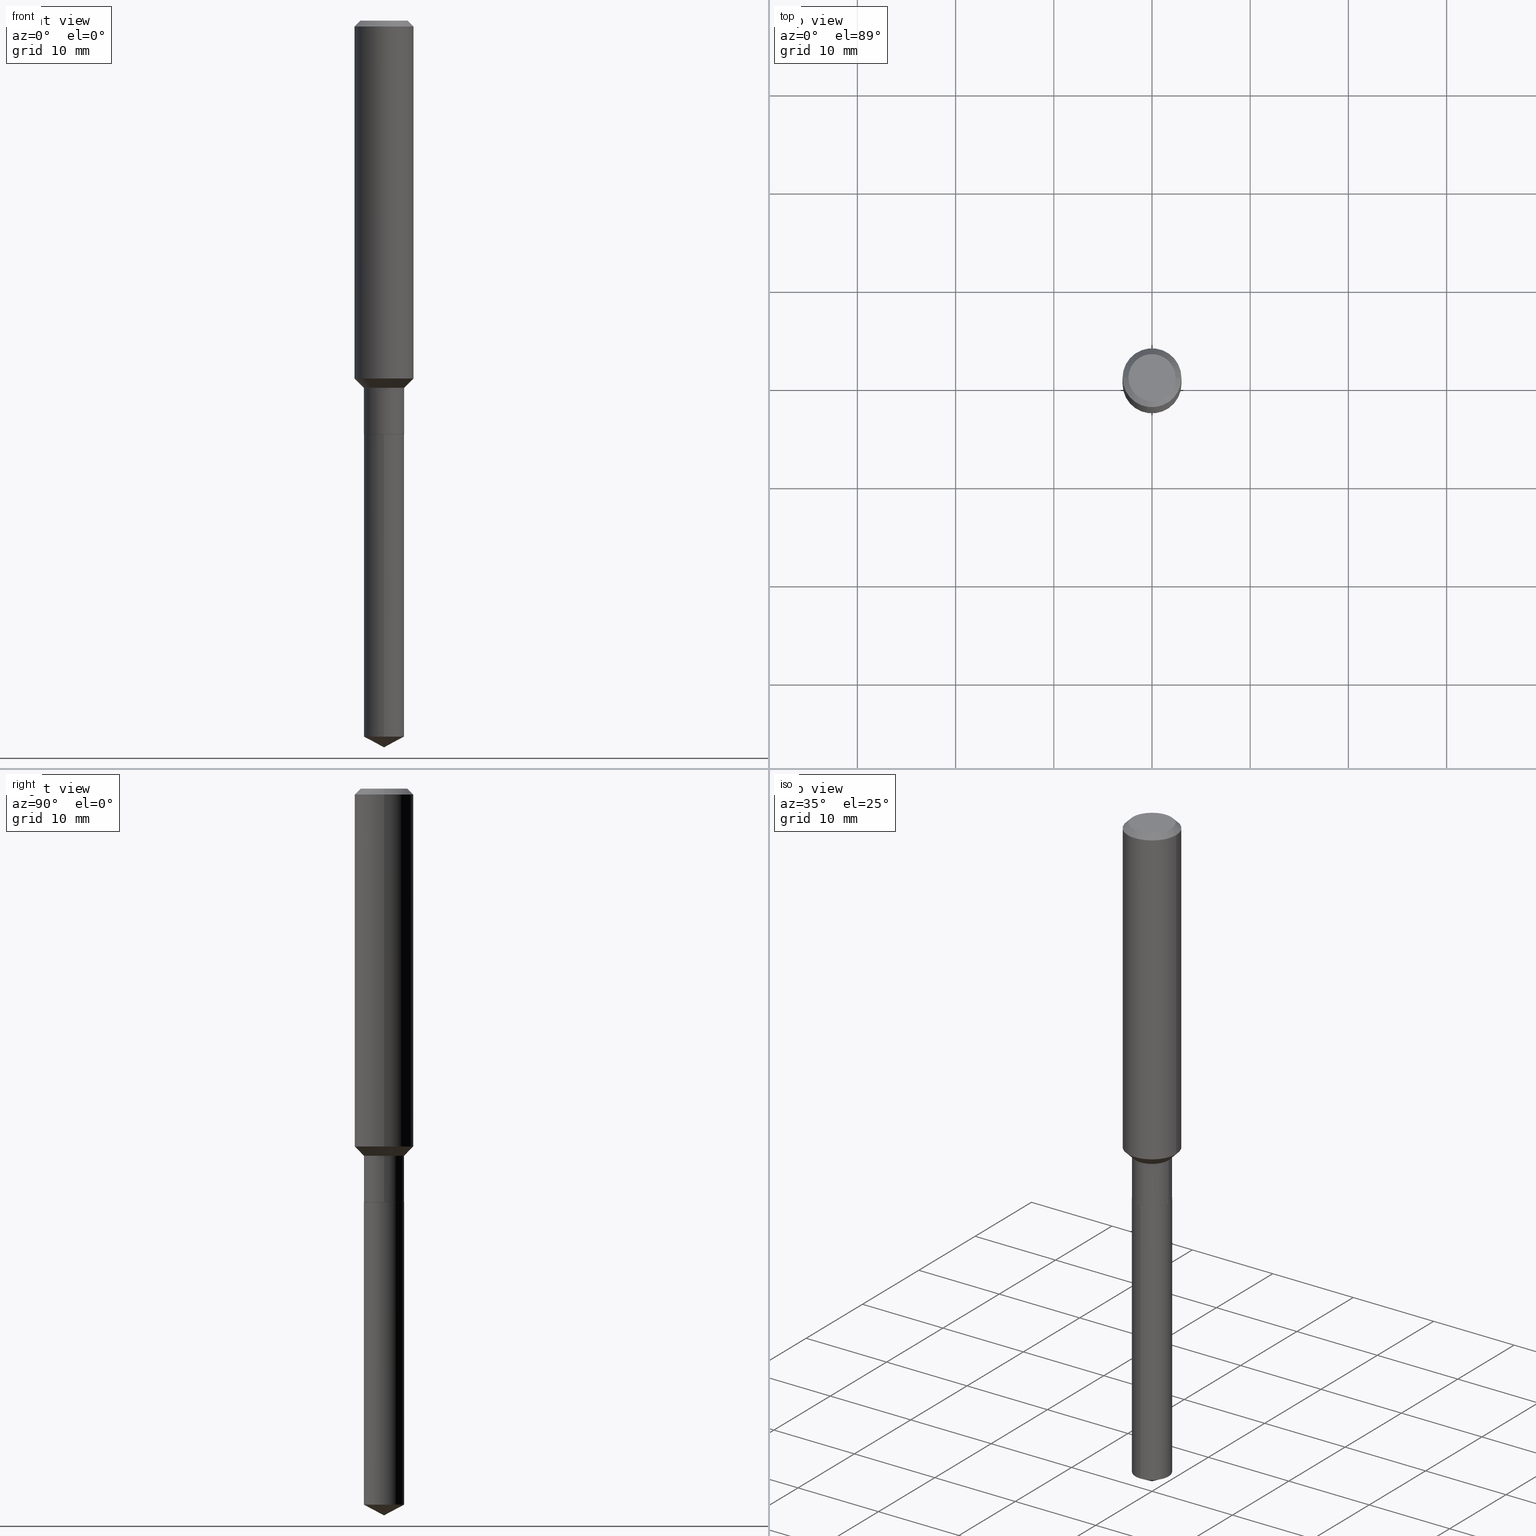
[diagram: canonical four-view strip — front | top / right | iso, engineering-drawing reading convention]
A machine part, canonical four-view strip (front | top / right | iso — engineering-drawing reading convention). The complete STEP part file that produces these views, byte-faithful:
ISO-10303-21;
HEADER;
FILE_DESCRIPTION (( 'STEP AP203' ),
    '1' );
FILE_NAME ('65171.STEP',
    '2024-04-24T20:54:24',
    ( '' ),
    ( '' ),
    'SwSTEP 2.0',
    'SolidWorks 2023',
    '' );
FILE_SCHEMA (( 'CONFIG_CONTROL_DESIGN' ));
ENDSEC;

DATA;
#1 = CARTESIAN_POINT ( 'NONE',  ( 4.053364546251863371E-29, -5.787130319132513889E-15, -1.657499999999999973 ) ) ;
#2 = ORIENTED_EDGE ( 'NONE', *, *, #172, .F. ) ;
#3 = EDGE_LOOP ( 'NONE', ( #271, #218, #302, #380 ) ) ;
#4 = CYLINDRICAL_SURFACE ( 'NONE', #141, 0.1181000000000000799 ) ;
#5 = CONICAL_SURFACE ( 'NONE', #412, 0.08019999999999999352, 0.7853981633975507526 ) ;
#6 = AXIS2_PLACEMENT_3D ( 'NONE', #357, #463, #304 ) ;
#7 = LINE ( 'NONE', #381, #209 ) ;
#8 = LINE ( 'NONE', #480, #311 ) ;
#9 = MANIFOLD_SOLID_BREP ( 'Body-Move/Copy2[1]', #153 ) ;
#10 = ADVANCED_FACE ( 'NONE', ( #88 ), #394, .T. ) ;
#11 = CIRCLE ( 'NONE', #68, 0.08069999999999999396 ) ;
#12 = PLANE ( 'NONE',  #167 ) ;
#13 = EDGE_CURVE ( 'NONE', #471, #129, #404, .T. ) ;
#14 = AXIS2_PLACEMENT_3D ( 'NONE', #97, #256, #376 ) ;
#15 = EDGE_LOOP ( 'NONE', ( #255, #47 ) ) ;
#16 = PLANE ( 'NONE',  #405 ) ;
#17 = DIRECTION ( 'NONE',  ( 2.445468806185136597E-29, -3.491481338843145583E-15, -1.000000000000000000 ) ) ;
#18 = DIRECTION ( 'NONE',  ( -2.445468806185136597E-29, 3.491481338843145583E-15, 1.000000000000000000 ) ) ;
#19 = DATE_AND_TIME ( #64, #248 ) ;
#20 = CARTESIAN_POINT ( 'NONE',  ( 7.124785533225864801E-29, -1.017185731024037782E-14, -2.913400000000000212 ) ) ;
#21 = CC_DESIGN_PERSON_AND_ORGANIZATION_ASSIGNMENT ( #59, #478, ( #69 ) ) ;
#22 = CARTESIAN_POINT ( 'NONE',  ( 5.734079877584412362E-16, 0.08069999999999420692, -1.657500000000000195 ) ) ;
#23 = ORIENTED_EDGE ( 'NONE', *, *, #205, .F. ) ;
#24 = AXIS2_PLACEMENT_3D ( 'NONE', #72, #489, #78 ) ;
#25 = VECTOR ( 'NONE', #453, 39.37007874015748143 ) ;
#26 = APPROVAL_PERSON_ORGANIZATION ( #466, #131, #373 ) ;
#27 = ORIENTED_EDGE ( 'NONE', *, *, #353, .F. ) ;
#28 = DIRECTION ( 'NONE',  ( 0.7071067811865493491, -2.468850131082277177E-15, 0.7071067811865454633 ) ) ;
#29 = CARTESIAN_POINT ( 'NONE',  ( 5.776197320209328408E-31, -8.246878922347560526E-17, -0.02362000000000014435 ) ) ;
#30 = PERSON_AND_ORGANIZATION_ROLE ( 'design_owner' ) ;
#31 = DIRECTION ( 'NONE',  ( 1.000000000000000000, -6.982962677686261977E-15, 0.000000000000000000 ) ) ;
#32 = CARTESIAN_POINT ( 'NONE',  ( 0.08069999999999999396, -6.348909666552373459E-15, -1.657000000000000028 ) ) ;
#33 = AXIS2_PLACEMENT_3D ( 'NONE', #347, #315, #410 ) ;
#34 = CYLINDRICAL_SURFACE ( 'NONE', #49, 0.08069999999999999396 ) ;
#35 = ORIENTED_EDGE ( 'NONE', *, *, #360, .T. ) ;
#36 = CARTESIAN_POINT ( 'NONE',  ( -5.635250880892411374E-16, -0.08070000000000578100, -1.657499999999999751 ) ) ;
#37 = ORIENTED_EDGE ( 'NONE', *, *, #379, .T. ) ;
#38 = ORIENTED_EDGE ( 'NONE', *, *, #156, .T. ) ;
#39 = ADVANCED_FACE ( 'NONE', ( #364 ), #224, .T. ) ;
#40 = DIRECTION ( 'NONE',  ( -2.445468806185136877E-29, 3.491481338843145188E-15, 1.000000000000000000 ) ) ;
#41 = VERTEX_POINT ( 'NONE', #391 ) ;
#42 = ORIENTED_EDGE ( 'NONE', *, *, #387, .F. ) ;
#43 = LENGTH_MEASURE_WITH_UNIT ( LENGTH_MEASURE( 0.02539999999999999897 ), #198 );
#44 = CONICAL_SURFACE ( 'NONE', #56, 0.1180999999999999966, 0.7853981633974459475 ) ;
#45 = VECTOR ( 'NONE', #189, 39.37007874015748143 ) ;
#46 = ADVANCED_FACE ( 'NONE', ( #328 ), #44, .T. ) ;
#47 = ORIENTED_EDGE ( 'NONE', *, *, #168, .T. ) ;
#48 = VERTEX_POINT ( 'NONE', #20 ) ;
#49 = AXIS2_PLACEMENT_3D ( 'NONE', #195, #267, #483 ) ;
#50 = FACE_OUTER_BOUND ( 'NONE', #169, .T. ) ;
#51 = VECTOR ( 'NONE', #81, 39.37007874015748143 ) ;
#52 = EDGE_CURVE ( 'NONE', #237, #140, #485, .T. ) ;
#53 = CARTESIAN_POINT ( 'NONE',  ( 4.053364546251863371E-29, -5.787130319132513889E-15, -1.657499999999999973 ) ) ;
#54 = PERSON_AND_ORGANIZATION ( #279, #426 ) ;
#55 = DIRECTION ( 'NONE',  ( 2.438088387897960049E-29, -3.491481338843145188E-15, -1.000000000000000000 ) ) ;
#56 = AXIS2_PLACEMENT_3D ( 'NONE', #134, #17, #361 ) ;
#57 = AXIS2_PLACEMENT_3D ( 'NONE', #262, #401, #307 ) ;
#58 = CYLINDRICAL_SURFACE ( 'NONE', #283, 0.08069999999999998008 ) ;
#59 = PERSON_AND_ORGANIZATION ( #279, #426 ) ;
#60 = LINE ( 'NONE', #22, #273 ) ;
#61 = ADVANCED_FACE ( 'NONE', ( #436 ), #5, .T. ) ;
#62 = DATE_TIME_ROLE ( 'classification_date' ) ;
#63 = ORIENTED_EDGE ( 'NONE', *, *, #475, .T. ) ;
#64 = CALENDAR_DATE ( 2024, 24, 4 ) ;
#65 = LINE ( 'NONE', #342, #450 ) ;
#66 = VERTEX_POINT ( 'NONE', #231 ) ;
#67 = CALENDAR_DATE ( 2024, 24, 4 ) ;
#68 = AXIS2_PLACEMENT_3D ( 'NONE', #1, #71, #157 ) ;
#69 = PRODUCT_DEFINITION ( 'UNKNOWN', '', #245, #86 ) ;
#70 = FACE_OUTER_BOUND ( 'NONE', #348, .T. ) ;
#71 = DIRECTION ( 'NONE',  ( -2.445522596700028966E-29, 3.491404307764253718E-15, 1.000000000000000000 ) ) ;
#72 = CARTESIAN_POINT ( 'NONE',  ( 4.053364546251863371E-29, -5.787130319132513889E-15, -1.657499999999999973 ) ) ;
#73 = AXIS2_PLACEMENT_3D ( 'NONE', #286, #287, #246 ) ;
#74 = CARTESIAN_POINT ( 'NONE',  ( 5.734079877584711143E-16, 0.08069999999998998808, -2.870491048864919570 ) ) ;
#75 = EDGE_CURVE ( 'NONE', #247, #235, #191, .T. ) ;
#76 = ORIENTED_EDGE ( 'NONE', *, *, #82, .T. ) ;
#77 = CARTESIAN_POINT ( 'NONE',  ( -0.08019999999999999352, -5.214625817878801991E-15, -1.657499999999999973 ) ) ;
#78 = DIRECTION ( 'NONE',  ( 1.000000000000000000, -6.982962677686265922E-15, 0.000000000000000000 ) ) ;
#79 = ORIENTED_EDGE ( 'NONE', *, *, #409, .T. ) ;
#80 = CARTESIAN_POINT ( 'NONE',  ( -0.09447999999999998066, 7.009847083995354710E-16, -1.928573779297727792E-17 ) ) ;
#81 = DIRECTION ( 'NONE',  ( 0.7071067811866199593, -2.468850131083015945E-15, 0.7071067811864750752 ) ) ;
#82 = EDGE_CURVE ( 'NONE', #48, #90, #270, .T. ) ;
#83 = CONICAL_SURFACE ( 'NONE', #254, 74.04434902938358221, 1.082104136236486713 ) ;
#84 = CC_DESIGN_SECURITY_CLASSIFICATION ( #346, ( #245 ) ) ;
#85 = ORIENTED_EDGE ( 'NONE', *, *, #475, .F. ) ;
#86 = DESIGN_CONTEXT ( 'detailed design', #130, 'design' ) ;
#87 = DIRECTION ( 'NONE',  ( -6.982962677686266711E-15, -1.000000000000000000, 3.385189583227092077E-15 ) ) ;
#88 = FACE_OUTER_BOUND ( 'NONE', #257, .T. ) ;
#89 = PLANE ( 'NONE',  #206 ) ;
#90 = VERTEX_POINT ( 'NONE', #74 ) ;
#91 = DIRECTION ( 'NONE',  ( -6.982962677686266711E-15, -1.000000000000000000, 3.541896320645558897E-15 ) ) ;
#92 = PERSON_AND_ORGANIZATION ( #279, #426 ) ;
#93 = CONICAL_SURFACE ( 'NONE', #24, 0.08019999999999999352, 0.7853981633975507526 ) ;
#94 = CIRCLE ( 'NONE', #316, 0.08069999999999998008 ) ;
#95 = DIRECTION ( 'NONE',  ( -2.445468806185136597E-29, 3.491481338843145583E-15, 1.000000000000000000 ) ) ;
#96 = CC_DESIGN_APPROVAL ( #236, ( #69 ) ) ;
#97 = CARTESIAN_POINT ( 'NONE',  ( 4.052141811848771691E-29, -5.785384578463092385E-15, -1.657000000000000028 ) ) ;
#98 = COORDINATED_UNIVERSAL_TIME_OFFSET ( 5, 0, .BEHIND. ) ;
#99 = ORIENTED_EDGE ( 'NONE', *, *, #52, .F. ) ;
#100 = CARTESIAN_POINT ( 'NONE',  ( 4.053364546251863371E-29, -5.787130319132513889E-15, -1.657499999999999973 ) ) ;
#101 = APPROVAL_DATE_TIME ( #470, #236 ) ;
#102 = DIRECTION ( 'NONE',  ( -2.445468806185136877E-29, 3.491481338843145188E-15, 1.000000000000000000 ) ) ;
#103 = FACE_OUTER_BOUND ( 'NONE', #173, .T. ) ;
#104 = EDGE_LOOP ( 'NONE', ( #272, #461, #99, #144 ) ) ;
#105 = EDGE_CURVE ( 'NONE', #165, #160, #454, .T. ) ;
#106 = DIRECTION ( 'NONE',  ( -2.445468806185136597E-29, 3.491481338843145583E-15, 1.000000000000000000 ) ) ;
#107 = DIRECTION ( 'NONE',  ( -2.445468806185136597E-29, 3.491481338843145583E-15, 1.000000000000000000 ) ) ;
#108 = AXIS2_PLACEMENT_3D ( 'NONE', #227, #452, #383 ) ;
#109 = CONICAL_SURFACE ( 'NONE', #57, 0.08069999999999998008, 0.7853981633974510546 ) ;
#110 = CC_DESIGN_APPROVAL ( #309, ( #346 ) ) ;
#111 = DIRECTION ( 'NONE',  ( -6.982962677686266711E-15, -1.000000000000000000, 6.770379166454184154E-15 ) ) ;
#112 = ADVANCED_FACE ( 'NONE', ( #114 ), #93, .T. ) ;
#113 = CARTESIAN_POINT ( 'NONE',  ( -0.1181000000000000799, 8.391509709326788873E-16, -5.809262341591047988E-30 ) ) ;
#114 = FACE_OUTER_BOUND ( 'NONE', #3, .T. ) ;
#115 = ORIENTED_EDGE ( 'NONE', *, *, #249, .T. ) ;
#116 = EDGE_LOOP ( 'NONE', ( #182, #299 ) ) ;
#117 = ORIENTED_EDGE ( 'NONE', *, *, #82, .F. ) ;
#118 = CC_DESIGN_PERSON_AND_ORGANIZATION_ASSIGNMENT ( #92, #30, ( #229 ) ) ;
#119 = LINE ( 'NONE', #349, #45 ) ;
#120 = CIRCLE ( 'NONE', #388, 0.1181000000000001632 ) ;
#121 = CARTESIAN_POINT ( 'NONE',  ( -0.08069999999999998008, -4.888839992794759829E-15, -1.471900000000000208 ) ) ;
#122 = ORIENTED_EDGE ( 'NONE', *, *, #168, .F. ) ;
#123 = CARTESIAN_POINT ( 'NONE',  ( 3.599485535823903241E-29, -5.139111382643227310E-15, -1.471900000000000208 ) ) ;
#124 = LINE ( 'NONE', #280, #25 ) ;
#125 = PRODUCT_RELATED_PRODUCT_CATEGORY ( 'detail', '', ( #229 ) ) ;
#126 = CARTESIAN_POINT ( 'NONE',  ( -5.635250880892114565E-16, -0.08070000000001002760, -2.870491048864918682 ) ) ;
#127 = DIMENSIONAL_EXPONENTS ( 1.000000000000000000, 0.000000000000000000, 0.000000000000000000, 0.000000000000000000, 0.000000000000000000, 0.000000000000000000, 0.000000000000000000 ) ;
#128 = AXIS2_PLACEMENT_3D ( 'NONE', #179, #473, #300 ) ;
#129 = VERTEX_POINT ( 'NONE', #155 ) ;
#130 = APPLICATION_CONTEXT ( 'configuration controlled 3d designs of mechanical parts and assemblies' ) ;
#131 = APPROVAL ( #212, 'UNSPECIFIED' ) ;
#132 = CONICAL_SURFACE ( 'NONE', #6, 74.04434902938358221, 1.082104136236486713 ) ;
#133 = LOCAL_TIME ( 16, 54, 24.00000000000000000, #143 ) ;
#134 = CARTESIAN_POINT ( 'NONE',  ( 5.776197320209328408E-31, -8.246878922347560526E-17, -0.02362000000000014435 ) ) ;
#135 = CARTESIAN_POINT ( 'NONE',  ( 4.053364546251863371E-29, -5.787130319132513889E-15, -1.657499999999999973 ) ) ;
#136 = EDGE_CURVE ( 'NONE', #350, #201, #431, .T. ) ;
#137 = DIRECTION ( 'NONE',  ( 6.982962677686265922E-15, 1.000000000000000000, -3.491404307764253324E-15 ) ) ;
#138 = CARTESIAN_POINT ( 'NONE',  ( 0.1180999999999999966, -9.071566814582237199E-16, -0.02362000000000014435 ) ) ;
#139 = DIRECTION ( 'NONE',  ( 1.000000000000000000, 0.000000000000000000, 0.000000000000000000 ) ) ;
#140 = VERTEX_POINT ( 'NONE', #121 ) ;
#141 = AXIS2_PLACEMENT_3D ( 'NONE', #339, #310, #374 ) ;
#142 = ORIENTED_EDGE ( 'NONE', *, *, #136, .F. ) ;
#143 = COORDINATED_UNIVERSAL_TIME_OFFSET ( 5, 0, .BEHIND. ) ;
#144 = ORIENTED_EDGE ( 'NONE', *, *, #446, .F. ) ;
#145 = CC_DESIGN_PERSON_AND_ORGANIZATION_ASSIGNMENT ( #54, #208, ( #346 ) ) ;
#146 = CYLINDRICAL_SURFACE ( 'NONE', #359, 0.1181000000000000799 ) ;
#147 = APPROVAL_DATE_TIME ( #367, #309 ) ;
#148 = ORIENTED_EDGE ( 'NONE', *, *, #52, .T. ) ;
#149 = DIRECTION ( 'NONE',  ( -0.7071067811865493491, 7.493145998870358893E-15, 0.7071067811865454633 ) ) ;
#150 = SECURITY_CLASSIFICATION_LEVEL ( 'unclassified' ) ;
#151 = DIRECTION ( 'NONE',  ( -2.445468806185136597E-29, 3.491481338843145583E-15, 1.000000000000000000 ) ) ;
#152 = DIRECTION ( 'NONE',  ( 6.273719981627766076E-15, 0.8829475928589297640, 0.4694715627858855878 ) ) ;
#153 = CLOSED_SHELL ( 'NONE', ( #163, #258, #289, #341, #285 ) ) ;
#154 = VECTOR ( 'NONE', #442, 39.37007874015748143 ) ;
#155 = CARTESIAN_POINT ( 'NONE',  ( 0.08019999999999999352, -6.347163925882951955E-15, -1.657499999999999973 ) ) ;
#156 = EDGE_CURVE ( 'NONE', #411, #399, #232, .T. ) ;
#157 = DIRECTION ( 'NONE',  ( -6.982962677686266711E-15, -1.000000000000000000, 3.385189583227092077E-15 ) ) ;
#158 = ORIENTED_EDGE ( 'NONE', *, *, #230, .T. ) ;
#159 = CARTESIAN_POINT ( 'NONE',  ( -0.08019999999999999352, -5.217275045052913192E-15, -1.657499999999999973 ) ) ;
#160 = VERTEX_POINT ( 'NONE', #32 ) ;
#161 = LINE ( 'NONE', #482, #51 ) ;
#162 = LOCAL_TIME ( 16, 54, 24.00000000000000000, #183 ) ;
#163 = ADVANCED_FACE ( 'NONE', ( #378 ), #34, .T. ) ;
#164 = LINE ( 'NONE', #351, #486 ) ;
#165 = VERTEX_POINT ( 'NONE', #445 ) ;
#166 = CARTESIAN_POINT ( 'NONE',  ( 3.508025002472578731E-29, -5.008529980570492532E-15, -1.434500000000000330 ) ) ;
#167 = AXIS2_PLACEMENT_3D ( 'NONE', #420, #55, #210 ) ;
#168 = EDGE_CURVE ( 'NONE', #41, #399, #11, .T. ) ;
#169 = EDGE_LOOP ( 'NONE', ( #240, #217 ) ) ;
#170 = DIRECTION ( 'NONE',  ( 1.000000000000000000, -6.982962677686265922E-15, 0.000000000000000000 ) ) ;
#171 = PRODUCT_DEFINITION_SHAPE ( 'NONE', 'NONE',  #69 ) ;
#172 = EDGE_CURVE ( 'NONE', #201, #66, #416, .T. ) ;
#173 = EDGE_LOOP ( 'NONE', ( #148, #63, #142, #42 ) ) ;
#174 = CARTESIAN_POINT ( 'NONE',  ( 4.053364546251863371E-29, -5.787130319132513889E-15, -1.657499999999999973 ) ) ;
#175 = DATE_AND_TIME ( #187, #355 ) ;
#176 = CYLINDRICAL_SURFACE ( 'NONE', #434, 0.08069999999999999396 ) ;
#177 = DIRECTION ( 'NONE',  ( -2.445468806185136597E-29, 3.491481338843145583E-15, 1.000000000000000000 ) ) ;
#178 = CARTESIAN_POINT ( 'NONE',  ( 0.1181000000000001632, -5.833217872805242372E-15, -1.434500000000000330 ) ) ;
#179 = CARTESIAN_POINT ( 'NONE',  ( 3.599485535823903241E-29, -5.139111382643227310E-15, -1.471900000000000208 ) ) ;
#180 = APPROVAL_STATUS ( 'not_yet_approved' ) ;
#181 = FACE_OUTER_BOUND ( 'NONE', #274, .T. ) ;
#182 = ORIENTED_EDGE ( 'NONE', *, *, #451, .F. ) ;
#183 = COORDINATED_UNIVERSAL_TIME_OFFSET ( 5, 0, .BEHIND. ) ;
#184 = ORIENTED_EDGE ( 'NONE', *, *, #192, .F. ) ;
#185 = DIRECTION ( 'NONE',  ( 1.000000000000000000, -6.982962677686267499E-15, 4.875432709231658792E-29 ) ) ;
#186 = CARTESIAN_POINT ( 'NONE',  ( -0.1181000000000001632, -4.169379009637814335E-15, -1.434500000000000330 ) ) ;
#187 = CALENDAR_DATE ( 2024, 24, 4 ) ;
#188 = CARTESIAN_POINT ( 'NONE',  ( 5.776197320209328408E-31, -8.246878922347560526E-17, -0.02362000000000014435 ) ) ;
#189 = DIRECTION ( 'NONE',  ( -2.445468806185136877E-29, 3.491481338843145188E-15, 1.000000000000000000 ) ) ;
#190 = DIRECTION ( 'NONE',  ( 1.000000000000000000, -6.982962677686267499E-15, 4.875432709231658792E-29 ) ) ;
#191 = CIRCLE ( 'NONE', #449, 0.09447999999999998066 ) ;
#192 = EDGE_CURVE ( 'NONE', #165, #140, #119, .T. ) ;
#193 =( GEOMETRIC_REPRESENTATION_CONTEXT ( 3 ) GLOBAL_UNCERTAINTY_ASSIGNED_CONTEXT ( ( #288 ) ) GLOBAL_UNIT_ASSIGNED_CONTEXT ( ( #202, #284, #354 ) ) REPRESENTATION_CONTEXT ( 'NONE', 'WORKASPACE' ) );
#194 = CC_DESIGN_APPROVAL ( #131, ( #245 ) ) ;
#195 = CARTESIAN_POINT ( 'NONE',  ( 4.053364546251863371E-29, -5.787130319132513889E-15, -1.657499999999999973 ) ) ;
#196 = ORIENTED_EDGE ( 'NONE', *, *, #105, .F. ) ;
#197 = ORIENTED_EDGE ( 'NONE', *, *, #390, .T. ) ;
#198 =( LENGTH_UNIT ( ) NAMED_UNIT ( * ) SI_UNIT ( $, .METRE. ) );
#199 = EDGE_CURVE ( 'NONE', #66, #313, #423, .T. ) ;
#200 = DIRECTION ( 'NONE',  ( -0.7071067811865459074, 2.468850131082239706E-15, -0.7071067811865492381 ) ) ;
#201 = VERTEX_POINT ( 'NONE', #186 ) ;
#202 =( CONVERSION_BASED_UNIT ( 'INCH', #43 ) LENGTH_UNIT ( ) NAMED_UNIT ( #127 ) );
#203 = AXIS2_PLACEMENT_3D ( 'NONE', #188, #444, #477 ) ;
#204 = ORIENTED_EDGE ( 'NONE', *, *, #136, .T. ) ;
#205 = EDGE_CURVE ( 'NONE', #471, #165, #228, .T. ) ;
#206 = AXIS2_PLACEMENT_3D ( 'NONE', #53, #301, #214 ) ;
#207 = CC_DESIGN_DATE_AND_TIME_ASSIGNMENT ( #175, #295, ( #69 ) ) ;
#208 = PERSON_AND_ORGANIZATION_ROLE ( 'classification_officer' ) ;
#209 = VECTOR ( 'NONE', #40, 39.37007874015748143 ) ;
#210 = DIRECTION ( 'NONE',  ( -1.000000000000000000, 6.982962677686265922E-15, -4.876176775795935793E-29 ) ) ;
#211 = EDGE_LOOP ( 'NONE', ( #456, #76, #352 ) ) ;
#212 = APPROVAL_STATUS ( 'not_yet_approved' ) ;
#213 = CARTESIAN_POINT ( 'NONE',  ( 0.000000000000000000, 0.000000000000000000, 0.000000000000000000 ) ) ;
#214 = DIRECTION ( 'NONE',  ( 1.000000000000000000, -6.982962677686265922E-15, 4.876176775795935793E-29 ) ) ;
#215 = PERSON_AND_ORGANIZATION ( #279, #426 ) ;
#216 = ORIENTED_EDGE ( 'NONE', *, *, #199, .T. ) ;
#217 = ORIENTED_EDGE ( 'NONE', *, *, #440, .T. ) ;
#218 = ORIENTED_EDGE ( 'NONE', *, *, #205, .T. ) ;
#219 = EDGE_CURVE ( 'NONE', #350, #313, #7, .T. ) ;
#220 = CALENDAR_DATE ( 2024, 24, 4 ) ;
#221 = ORIENTED_EDGE ( 'NONE', *, *, #387, .T. ) ;
#222 = ORIENTED_EDGE ( 'NONE', *, *, #484, .T. ) ;
#223 = CARTESIAN_POINT ( 'NONE',  ( 0.08069999999999998008, -5.702636470732508383E-15, -1.471900000000000208 ) ) ;
#224 = CONICAL_SURFACE ( 'NONE', #290, 0.1180999999999999966, 0.7853981633974459475 ) ;
#225 = CIRCLE ( 'NONE', #443, 0.08019999999999999352 ) ;
#226 = ORIENTED_EDGE ( 'NONE', *, *, #230, .F. ) ;
#227 = CARTESIAN_POINT ( 'NONE',  ( 7.019761565845892683E-29, -1.002217249241897221E-14, -2.870491048864919126 ) ) ;
#228 = LINE ( 'NONE', #159, #291 ) ;
#229 = PRODUCT ( '65171', '65171', '', ( #250 ) ) ;
#230 = EDGE_CURVE ( 'NONE', #247, #66, #164, .T. ) ;
#231 = CARTESIAN_POINT ( 'NONE',  ( -0.1180999999999999966, -1.706348413964304614E-15, -0.02362000000000014435 ) ) ;
#232 = LINE ( 'NONE', #36, #233 ) ;
#233 = VECTOR ( 'NONE', #447, 39.37007874015748143 ) ;
#234 = VECTOR ( 'NONE', #448, 39.37007874015748143 ) ;
#235 = VERTEX_POINT ( 'NONE', #421 ) ;
#236 = APPROVAL ( #297, 'UNSPECIFIED' ) ;
#237 = VERTEX_POINT ( 'NONE', #319 ) ;
#238 = CARTESIAN_POINT ( 'NONE',  ( 0.1180999999999999966, -8.926936027602933910E-16, -0.02362000000000014435 ) ) ;
#239 = CARTESIAN_POINT ( 'NONE',  ( 3.508025002472578731E-29, -5.008529980570492532E-15, -1.434500000000000330 ) ) ;
#240 = ORIENTED_EDGE ( 'NONE', *, *, #75, .T. ) ;
#241 = ORIENTED_EDGE ( 'NONE', *, *, #446, .T. ) ;
#242 = CARTESIAN_POINT ( 'NONE',  ( 3.599485535823903241E-29, -5.139111382643227310E-15, -1.471900000000000208 ) ) ;
#243 = ORIENTED_EDGE ( 'NONE', *, *, #199, .F. ) ;
#244 = AXIS2_PLACEMENT_3D ( 'NONE', #29, #407, #269 ) ;
#245 = PRODUCT_DEFINITION_FORMATION_WITH_SPECIFIED_SOURCE ( 'ANY', '', #229, .NOT_KNOWN. ) ;
#246 = DIRECTION ( 'NONE',  ( -6.982962677686266711E-15, -1.000000000000000000, 3.385189583227092077E-15 ) ) ;
#247 = VERTEX_POINT ( 'NONE', #80 ) ;
#248 = LOCAL_TIME ( 16, 54, 24.00000000000000000, #363 ) ;
#249 = EDGE_CURVE ( 'NONE', #48, #411, #124, .T. ) ;
#250 = MECHANICAL_CONTEXT ( 'NONE', #490, 'mechanical' ) ;
#251 = ORIENTED_EDGE ( 'NONE', *, *, #390, .F. ) ;
#252 = FACE_OUTER_BOUND ( 'NONE', #104, .T. ) ;
#253 = APPLICATION_PROTOCOL_DEFINITION ( 'international standard', 'config_control_design', 1994, #130 ) ;
#254 = AXIS2_PLACEMENT_3D ( 'NONE', #432, #429, #91 ) ;
#255 = ORIENTED_EDGE ( 'NONE', *, *, #326, .T. ) ;
#256 = DIRECTION ( 'NONE',  ( -2.445468806185136597E-29, 3.491481338843145583E-15, 1.000000000000000000 ) ) ;
#257 = EDGE_LOOP ( 'NONE', ( #184, #402, #241, #263 ) ) ;
#258 = ADVANCED_FACE ( 'NONE', ( #392 ), #132, .T. ) ;
#259 = DIRECTION ( 'NONE',  ( -2.445468806185136597E-29, 3.491481338843145583E-15, 1.000000000000000000 ) ) ;
#260 = DATE_AND_TIME ( #67, #292 ) ;
#261 = LINE ( 'NONE', #223, #385 ) ;
#262 = CARTESIAN_POINT ( 'NONE',  ( 3.599485535823903241E-29, -5.139111382643227310E-15, -1.471900000000000208 ) ) ;
#263 = ORIENTED_EDGE ( 'NONE', *, *, #409, .F. ) ;
#264 = DIRECTION ( 'NONE',  ( -2.445468806185136597E-29, 3.491481338843145583E-15, 1.000000000000000000 ) ) ;
#265 = VECTOR ( 'NONE', #152, 39.37007874015748143 ) ;
#266 = CONICAL_SURFACE ( 'NONE', #393, 0.08069999999999998008, 0.7853981633974510546 ) ;
#267 = DIRECTION ( 'NONE',  ( -2.445522596700028966E-29, 3.491404307764253718E-15, 1.000000000000000000 ) ) ;
#268 = ADVANCED_FACE ( 'NONE', ( #427 ), #89, .F. ) ;
#269 = DIRECTION ( 'NONE',  ( 1.000000000000000000, -6.982962677686266711E-15, 0.000000000000000000 ) ) ;
#270 = LINE ( 'NONE', #308, #265 ) ;
#271 = ORIENTED_EDGE ( 'NONE', *, *, #451, .T. ) ;
#272 = ORIENTED_EDGE ( 'NONE', *, *, #314, .T. ) ;
#273 = VECTOR ( 'NONE', #406, 39.37007874015748143 ) ;
#274 = EDGE_LOOP ( 'NONE', ( #85, #79, #221, #340 ) ) ;
#275 = FACE_OUTER_BOUND ( 'NONE', #418, .T. ) ;
#276 = CC_DESIGN_PERSON_AND_ORGANIZATION_ASSIGNMENT ( #305, #481, ( #245 ) ) ;
#277 = ORIENTED_EDGE ( 'NONE', *, *, #353, .T. ) ;
#278 = CARTESIAN_POINT ( 'NONE',  ( 4.716267017698007905E-46, -6.733579360998555036E-32, -1.928573779297252010E-17 ) ) ;
#279 = PERSON ( 'UNSPECIFIED', 'UNSPECIFIED', 'UNSPECIFIED', ('UNSPECIFIED'), ('UNSPECIFIED'), ('UNSPECIFIED') ) ;
#280 = CARTESIAN_POINT ( 'NONE',  ( 7.124607217668996683E-29, -1.017211266826690637E-14, -2.913400000000000212 ) ) ;
#281 = ORIENTED_EDGE ( 'NONE', *, *, #326, .F. ) ;
#282 = CARTESIAN_POINT ( 'NONE',  ( -5.635250880892411374E-16, -0.08070000000000578100, -1.657499999999999751 ) ) ;
#283 = AXIS2_PLACEMENT_3D ( 'NONE', #362, #18, #469 ) ;
#284 =( NAMED_UNIT ( * ) PLANE_ANGLE_UNIT ( ) SI_UNIT ( $, .RADIAN. ) );
#285 = ADVANCED_FACE ( 'NONE', ( #358 ), #16, .F. ) ;
#286 = CARTESIAN_POINT ( 'NONE',  ( 4.053364546251863371E-29, -5.787130319132513889E-15, -1.657499999999999973 ) ) ;
#287 = DIRECTION ( 'NONE',  ( -2.445522596700028966E-29, 3.491404307764253718E-15, 1.000000000000000000 ) ) ;
#288 = UNCERTAINTY_MEASURE_WITH_UNIT (LENGTH_MEASURE( 1.000000000000000082E-05 ), #202, 'distance_accuracy_value', 'NONE');
#289 = ADVANCED_FACE ( 'NONE', ( #294 ), #83, .T. ) ;
#290 = AXIS2_PLACEMENT_3D ( 'NONE', #336, #293, #464 ) ;
#291 = VECTOR ( 'NONE', #408, 39.37007874015748143 ) ;
#292 = LOCAL_TIME ( 16, 54, 24.00000000000000000, #365 ) ;
#293 = DIRECTION ( 'NONE',  ( 2.445468806185136597E-29, -3.491481338843145583E-15, -1.000000000000000000 ) ) ;
#294 = FACE_OUTER_BOUND ( 'NONE', #317, .T. ) ;
#295 = DATE_TIME_ROLE ( 'creation_date' ) ;
#296 = EDGE_LOOP ( 'NONE', ( #23, #389, #488, #196 ) ) ;
#297 = APPROVAL_STATUS ( 'not_yet_approved' ) ;
#298 = ADVANCED_FACE ( 'NONE', ( #252 ), #58, .T. ) ;
#299 = ORIENTED_EDGE ( 'NONE', *, *, #13, .F. ) ;
#300 = DIRECTION ( 'NONE',  ( 1.000000000000000000, -6.982962677686261977E-15, 0.000000000000000000 ) ) ;
#301 = DIRECTION ( 'NONE',  ( -2.438088387897960049E-29, 3.491481338843145188E-15, 1.000000000000000000 ) ) ;
#302 = ORIENTED_EDGE ( 'NONE', *, *, #314, .F. ) ;
#303 = DIRECTION ( 'NONE',  ( 1.000000000000000000, -6.982962677686265922E-15, 0.000000000000000000 ) ) ;
#304 = DIRECTION ( 'NONE',  ( -6.982962677686266711E-15, -1.000000000000000000, 3.541896320645558897E-15 ) ) ;
#305 = PERSON_AND_ORGANIZATION ( #279, #426 ) ;
#306 = DIRECTION ( 'NONE',  ( 1.000000000000000000, -6.982962677686263555E-15, 0.000000000000000000 ) ) ;
#307 = DIRECTION ( 'NONE',  ( 1.000000000000000000, -6.982962677686261977E-15, 0.000000000000000000 ) ) ;
#308 = CARTESIAN_POINT ( 'NONE',  ( 7.124787096842814126E-29, -1.017185731024037782E-14, -2.913400000000000212 ) ) ;
#309 = APPROVAL ( #180, 'UNSPECIFIED' ) ;
#310 = DIRECTION ( 'NONE',  ( -2.445468806185136597E-29, 3.491481338843145583E-15, 1.000000000000000000 ) ) ;
#311 = VECTOR ( 'NONE', #102, 39.37007874015748143 ) ;
#312 = DIRECTION ( 'NONE',  ( 1.000000000000000000, -6.982962677686263555E-15, 0.000000000000000000 ) ) ;
#313 = VERTEX_POINT ( 'NONE', #138 ) ;
#314 = EDGE_CURVE ( 'NONE', #160, #165, #371, .T. ) ;
#315 = DIRECTION ( 'NONE',  ( -2.445468806185136597E-29, 3.491481338843145583E-15, 1.000000000000000000 ) ) ;
#316 = AXIS2_PLACEMENT_3D ( 'NONE', #123, #264, #31 ) ;
#317 = EDGE_LOOP ( 'NONE', ( #117, #115, #251 ) ) ;
#318 = DIRECTION ( 'NONE',  ( -2.445468806185136597E-29, 3.491481338843145583E-15, 1.000000000000000000 ) ) ;
#319 = CARTESIAN_POINT ( 'NONE',  ( 0.08069999999999998008, -5.702636470732508383E-15, -1.471900000000000208 ) ) ;
#320 = ORIENTED_EDGE ( 'NONE', *, *, #156, .F. ) ;
#321 = DIRECTION ( 'NONE',  ( -2.445468806185136597E-29, 3.491481338843145583E-15, 1.000000000000000000 ) ) ;
#322 = ADVANCED_FACE ( 'NONE', ( #103 ), #109, .T. ) ;
#323 = ADVANCED_BREP_SHAPE_REPRESENTATION ( '65171', ( #9, #487, #455 ), #193 ) ;
#324 = AXIS2_PLACEMENT_3D ( 'NONE', #239, #413, #312 ) ;
#325 = CIRCLE ( 'NONE', #108, 0.08069999999999999396 ) ;
#326 = EDGE_CURVE ( 'NONE', #399, #41, #474, .T. ) ;
#327 = DIRECTION ( 'NONE',  ( -2.445522596700028966E-29, 3.491404307764253718E-15, 1.000000000000000000 ) ) ;
#328 = FACE_OUTER_BOUND ( 'NONE', #335, .T. ) ;
#329 = CIRCLE ( 'NONE', #203, 0.1180999999999999966 ) ;
#330 = CIRCLE ( 'NONE', #338, 0.09447999999999998066 ) ;
#331 = DIRECTION ( 'NONE',  ( 1.000000000000000000, -6.982962677686265133E-15, 4.876176775795935232E-29 ) ) ;
#332 = DIRECTION ( 'NONE',  ( 0.000000000000000000, 0.000000000000000000, 1.000000000000000000 ) ) ;
#333 = ORIENTED_EDGE ( 'NONE', *, *, #172, .T. ) ;
#334 = ADVANCED_FACE ( 'NONE', ( #50 ), #12, .F. ) ;
#335 = EDGE_LOOP ( 'NONE', ( #435, #386, #158, #216 ) ) ;
#336 = CARTESIAN_POINT ( 'NONE',  ( 5.776197320209328408E-31, -8.246878922347560526E-17, -0.02362000000000014435 ) ) ;
#337 = APPROVAL_ROLE ( '' ) ;
#338 = AXIS2_PLACEMENT_3D ( 'NONE', #278, #151, #185 ) ;
#339 = CARTESIAN_POINT ( 'NONE',  ( 0.000000000000000000, 0.000000000000000000, 0.000000000000000000 ) ) ;
#340 = ORIENTED_EDGE ( 'NONE', *, *, #457, .F. ) ;
#341 = ADVANCED_FACE ( 'NONE', ( #472 ), #176, .T. ) ;
#342 = CARTESIAN_POINT ( 'NONE',  ( -0.08069999999999998008, -4.565703394884827291E-15, -1.471900000000000208 ) ) ;
#343 = APPROVAL_DATE_TIME ( #260, #131 ) ;
#344 = DIRECTION ( 'NONE',  ( -2.445522596700028966E-29, 3.491404307764253718E-15, 1.000000000000000000 ) ) ;
#345 = AXIS2_PLACEMENT_3D ( 'NONE', #366, #344, #111 ) ;
#346 = SECURITY_CLASSIFICATION ( '', '', #150 ) ;
#347 = CARTESIAN_POINT ( 'NONE',  ( 4.052141811848771691E-29, -5.785384578463092385E-15, -1.657000000000000028 ) ) ;
#348 = EDGE_LOOP ( 'NONE', ( #2, #414, #382, #243 ) ) ;
#349 = CARTESIAN_POINT ( 'NONE',  ( -0.08069999999999998008, 5.734079877584007085E-16, -3.969580617835708043E-30 ) ) ;
#350 = VERTEX_POINT ( 'NONE', #178 ) ;
#351 = CARTESIAN_POINT ( 'NONE',  ( -0.1180999999999999966, 7.422191030112725094E-16, -0.02362000000000014435 ) ) ;
#352 = ORIENTED_EDGE ( 'NONE', *, *, #379, .F. ) ;
#353 = EDGE_CURVE ( 'NONE', #90, #41, #60, .T. ) ;
#354 =( NAMED_UNIT ( * ) SI_UNIT ( $, .STERADIAN. ) SOLID_ANGLE_UNIT ( ) );
#355 = LOCAL_TIME ( 16, 54, 24.00000000000000000, #98 ) ;
#356 = CC_DESIGN_PERSON_AND_ORGANIZATION_ASSIGNMENT ( #395, #398, ( #245 ) ) ;
#357 = CARTESIAN_POINT ( 'NONE',  ( -8.915572081746709312E-28, 1.272848775211500524E-13, 36.45667874015747856 ) ) ;
#358 = FACE_OUTER_BOUND ( 'NONE', #15, .T. ) ;
#359 = AXIS2_PLACEMENT_3D ( 'NONE', #439, #318, #372 ) ;
#360 = EDGE_CURVE ( 'NONE', #313, #66, #329, .T. ) ;
#361 = DIRECTION ( 'NONE',  ( -1.000000000000000000, 6.982962677686266711E-15, 0.000000000000000000 ) ) ;
#362 = CARTESIAN_POINT ( 'NONE',  ( 0.000000000000000000, 0.000000000000000000, 0.000000000000000000 ) ) ;
#363 = COORDINATED_UNIVERSAL_TIME_OFFSET ( 5, 0, .BEHIND. ) ;
#364 = FACE_OUTER_BOUND ( 'NONE', #468, .T. ) ;
#365 = COORDINATED_UNIVERSAL_TIME_OFFSET ( 5, 0, .BEHIND. ) ;
#366 = CARTESIAN_POINT ( 'NONE',  ( 7.019761565845892683E-29, -1.002217249241897221E-14, -2.870491048864919126 ) ) ;
#367 = DATE_AND_TIME ( #220, #133 ) ;
#368 = ADVANCED_FACE ( 'NONE', ( #70 ), #146, .T. ) ;
#369 = CLOSED_SHELL ( 'NONE', ( #112, #39, #397, #322, #298, #10, #459, #368, #46, #334, #268, #61 ) ) ;
#370 = EDGE_LOOP ( 'NONE', ( #37, #277, #281, #320 ) ) ;
#371 = CIRCLE ( 'NONE', #14, 0.08069999999999999396 ) ;
#372 = DIRECTION ( 'NONE',  ( 1.000000000000000000, -6.982962677686266711E-15, 4.876176775795936353E-29 ) ) ;
#373 = APPROVAL_ROLE ( '' ) ;
#374 = DIRECTION ( 'NONE',  ( 1.000000000000000000, -6.982962677686266711E-15, 4.876176775795936353E-29 ) ) ;
#375 = CARTESIAN_POINT ( 'NONE',  ( 4.716267017698007905E-46, -6.733579360998555036E-32, -1.928573779297252010E-17 ) ) ;
#376 = DIRECTION ( 'NONE',  ( 1.000000000000000000, -6.982962677686260400E-15, 0.000000000000000000 ) ) ;
#377 = APPROVAL_PERSON_ORGANIZATION ( #437, #236, #433 ) ;
#378 = FACE_OUTER_BOUND ( 'NONE', #370, .T. ) ;
#379 = EDGE_CURVE ( 'NONE', #411, #90, #325, .T. ) ;
#380 = ORIENTED_EDGE ( 'NONE', *, *, #417, .F. ) ;
#381 = CARTESIAN_POINT ( 'NONE',  ( 0.1181000000000000799, -8.246878922347486570E-16, 5.758764772215004644E-30 ) ) ;
#382 = ORIENTED_EDGE ( 'NONE', *, *, #219, .T. ) ;
#383 = DIRECTION ( 'NONE',  ( -6.982962677686266711E-15, -1.000000000000000000, 6.770379166454184154E-15 ) ) ;
#384 = CC_DESIGN_DATE_AND_TIME_ASSIGNMENT ( #19, #62, ( #346 ) ) ;
#385 = VECTOR ( 'NONE', #28, 39.37007874015748854 ) ;
#386 = ORIENTED_EDGE ( 'NONE', *, *, #75, .F. ) ;
#387 = EDGE_CURVE ( 'NONE', #237, #350, #261, .T. ) ;
#388 = AXIS2_PLACEMENT_3D ( 'NONE', #166, #415, #306 ) ;
#389 = ORIENTED_EDGE ( 'NONE', *, *, #13, .T. ) ;
#390 = EDGE_CURVE ( 'NONE', #90, #411, #462, .T. ) ;
#391 = CARTESIAN_POINT ( 'NONE',  ( 5.734079877584710157E-16, 0.08069999999999420692, -1.657500000000000195 ) ) ;
#392 = FACE_OUTER_BOUND ( 'NONE', #211, .T. ) ;
#393 = AXIS2_PLACEMENT_3D ( 'NONE', #242, #321, #422 ) ;
#394 = CYLINDRICAL_SURFACE ( 'NONE', #425, 0.08069999999999998008 ) ;
#395 = PERSON_AND_ORGANIZATION ( #279, #426 ) ;
#396 = DIRECTION ( 'NONE',  ( 1.000000000000000000, -6.982962677686265922E-15, 0.000000000000000000 ) ) ;
#397 = ADVANCED_FACE ( 'NONE', ( #275 ), #4, .T. ) ;
#398 = PERSON_AND_ORGANIZATION_ROLE ( 'creator' ) ;
#399 = VERTEX_POINT ( 'NONE', #282 ) ;
#400 = CARTESIAN_POINT ( 'NONE',  ( 4.053364546251863371E-29, -5.787130319132513889E-15, -1.657499999999999973 ) ) ;
#401 = DIRECTION ( 'NONE',  ( -2.445468806185136597E-29, 3.491481338843145583E-15, 1.000000000000000000 ) ) ;
#402 = ORIENTED_EDGE ( 'NONE', *, *, #105, .T. ) ;
#403 = CALENDAR_DATE ( 2024, 24, 4 ) ;
#404 = CIRCLE ( 'NONE', #460, 0.08019999999999999352 ) ;
#405 = AXIS2_PLACEMENT_3D ( 'NONE', #174, #465, #137 ) ;
#406 = DIRECTION ( 'NONE',  ( -2.445522596700028966E-29, 3.491404307764253324E-15, 1.000000000000000000 ) ) ;
#407 = DIRECTION ( 'NONE',  ( -2.445468806185136597E-29, 3.491481338843145583E-15, 1.000000000000000000 ) ) ;
#408 = DIRECTION ( 'NONE',  ( -0.7071067811866199593, 7.493145998870616062E-15, 0.7071067811864750752 ) ) ;
#409 = EDGE_CURVE ( 'NONE', #140, #237, #94, .T. ) ;
#410 = DIRECTION ( 'NONE',  ( 1.000000000000000000, -6.982962677686260400E-15, 0.000000000000000000 ) ) ;
#411 = VERTEX_POINT ( 'NONE', #126 ) ;
#412 = AXIS2_PLACEMENT_3D ( 'NONE', #100, #259, #396 ) ;
#413 = DIRECTION ( 'NONE',  ( -2.445468806185136597E-29, 3.491481338843145583E-15, 1.000000000000000000 ) ) ;
#414 = ORIENTED_EDGE ( 'NONE', *, *, #457, .T. ) ;
#415 = DIRECTION ( 'NONE',  ( -2.445468806185136597E-29, 3.491481338843145583E-15, 1.000000000000000000 ) ) ;
#416 = LINE ( 'NONE', #113, #234 ) ;
#417 = EDGE_CURVE ( 'NONE', #129, #160, #161, .T. ) ;
#418 = EDGE_LOOP ( 'NONE', ( #204, #333, #479, #428 ) ) ;
#419 = LINE ( 'NONE', #238, #154 ) ;
#420 = CARTESIAN_POINT ( 'NONE',  ( 2.358133508849003952E-46, -3.366789680499277518E-32, -9.642868896486260050E-18 ) ) ;
#421 = CARTESIAN_POINT ( 'NONE',  ( 0.09447999999999998066, -7.704367267948738690E-16, -1.928573779296752193E-17 ) ) ;
#422 = DIRECTION ( 'NONE',  ( 1.000000000000000000, -6.982962677686261977E-15, 0.000000000000000000 ) ) ;
#423 = CIRCLE ( 'NONE', #244, 0.1180999999999999966 ) ;
#424 = APPROVAL_PERSON_ORGANIZATION ( #215, #309, #337 ) ;
#425 = AXIS2_PLACEMENT_3D ( 'NONE', #213, #177, #331 ) ;
#426 = ORGANIZATION ( 'UNSPECIFIED', 'UNSPECIFIED', '' ) ;
#427 = FACE_OUTER_BOUND ( 'NONE', #116, .T. ) ;
#428 = ORIENTED_EDGE ( 'NONE', *, *, #219, .F. ) ;
#429 = DIRECTION ( 'NONE',  ( -2.445522596700028966E-29, 3.491404307764253718E-15, 1.000000000000000000 ) ) ;
#430 = CARTESIAN_POINT ( 'NONE',  ( 0.000000000000000000, 0.000000000000000000, 0.000000000000000000 ) ) ;
#431 = CIRCLE ( 'NONE', #324, 0.1181000000000001632 ) ;
#432 = CARTESIAN_POINT ( 'NONE',  ( -8.915572081746709312E-28, 1.272848775211500524E-13, 36.45667874015747856 ) ) ;
#433 = APPROVAL_ROLE ( '' ) ;
#434 = AXIS2_PLACEMENT_3D ( 'NONE', #467, #327, #87 ) ;
#435 = ORIENTED_EDGE ( 'NONE', *, *, #484, .F. ) ;
#436 = FACE_OUTER_BOUND ( 'NONE', #296, .T. ) ;
#437 = PERSON_AND_ORGANIZATION ( #279, #426 ) ;
#438 = EDGE_LOOP ( 'NONE', ( #27, #197, #38, #122 ) ) ;
#439 = CARTESIAN_POINT ( 'NONE',  ( 0.000000000000000000, 0.000000000000000000, 0.000000000000000000 ) ) ;
#440 = EDGE_CURVE ( 'NONE', #235, #247, #330, .T. ) ;
#441 = SHAPE_DEFINITION_REPRESENTATION ( #171, #323 ) ;
#442 = DIRECTION ( 'NONE',  ( 0.7071067811865459074, -7.319954787623251312E-15, -0.7071067811865492381 ) ) ;
#443 = AXIS2_PLACEMENT_3D ( 'NONE', #400, #106, #303 ) ;
#444 = DIRECTION ( 'NONE',  ( -2.445468806185136597E-29, 3.491481338843145583E-15, 1.000000000000000000 ) ) ;
#445 = CARTESIAN_POINT ( 'NONE',  ( -0.08069999999999999396, -4.888839992794759829E-15, -1.657000000000000028 ) ) ;
#446 = EDGE_CURVE ( 'NONE', #160, #237, #8, .T. ) ;
#447 = DIRECTION ( 'NONE',  ( -2.445522596700028966E-29, 3.491404307764253324E-15, 1.000000000000000000 ) ) ;
#448 = DIRECTION ( 'NONE',  ( -2.445468806185136877E-29, 3.491481338843145188E-15, 1.000000000000000000 ) ) ;
#449 = AXIS2_PLACEMENT_3D ( 'NONE', #375, #107, #190 ) ;
#450 = VECTOR ( 'NONE', #149, 39.37007874015748854 ) ;
#451 = EDGE_CURVE ( 'NONE', #129, #471, #225, .T. ) ;
#452 = DIRECTION ( 'NONE',  ( -2.445522596700028966E-29, 3.491404307764253718E-15, 1.000000000000000000 ) ) ;
#453 = DIRECTION ( 'NONE',  ( -6.165590087286835240E-15, -0.8829475928589264333, 0.4694715627858918050 ) ) ;
#454 = CIRCLE ( 'NONE', #33, 0.08069999999999999396 ) ;
#455 = AXIS2_PLACEMENT_3D ( 'NONE', #430, #332, #139 ) ;
#456 = ORIENTED_EDGE ( 'NONE', *, *, #249, .F. ) ;
#457 = EDGE_CURVE ( 'NONE', #201, #350, #120, .T. ) ;
#458 = APPLICATION_PROTOCOL_DEFINITION ( 'international standard', 'config_control_design', 1994, #490 ) ;
#459 = ADVANCED_FACE ( 'NONE', ( #181 ), #266, .T. ) ;
#460 = AXIS2_PLACEMENT_3D ( 'NONE', #135, #95, #170 ) ;
#461 = ORIENTED_EDGE ( 'NONE', *, *, #192, .T. ) ;
#462 = CIRCLE ( 'NONE', #345, 0.08069999999999999396 ) ;
#463 = DIRECTION ( 'NONE',  ( -2.445522596700028966E-29, 3.491404307764253718E-15, 1.000000000000000000 ) ) ;
#464 = DIRECTION ( 'NONE',  ( -1.000000000000000000, 6.982962677686266711E-15, 0.000000000000000000 ) ) ;
#465 = DIRECTION ( 'NONE',  ( 2.445522596700028966E-29, -3.491404307764253324E-15, -1.000000000000000000 ) ) ;
#466 = PERSON_AND_ORGANIZATION ( #279, #426 ) ;
#467 = CARTESIAN_POINT ( 'NONE',  ( 4.053364546251863371E-29, -5.787130319132513889E-15, -1.657499999999999973 ) ) ;
#468 = EDGE_LOOP ( 'NONE', ( #476, #222, #35, #226 ) ) ;
#469 = DIRECTION ( 'NONE',  ( 1.000000000000000000, -6.982962677686265133E-15, 4.876176775795935232E-29 ) ) ;
#470 = DATE_AND_TIME ( #403, #162 ) ;
#471 = VERTEX_POINT ( 'NONE', #77 ) ;
#472 = FACE_OUTER_BOUND ( 'NONE', #438, .T. ) ;
#473 = DIRECTION ( 'NONE',  ( -2.445468806185136597E-29, 3.491481338843145583E-15, 1.000000000000000000 ) ) ;
#474 = CIRCLE ( 'NONE', #73, 0.08069999999999999396 ) ;
#475 = EDGE_CURVE ( 'NONE', #140, #201, #65, .T. ) ;
#476 = ORIENTED_EDGE ( 'NONE', *, *, #440, .F. ) ;
#477 = DIRECTION ( 'NONE',  ( 1.000000000000000000, -6.982962677686266711E-15, 0.000000000000000000 ) ) ;
#478 = PERSON_AND_ORGANIZATION_ROLE ( 'creator' ) ;
#479 = ORIENTED_EDGE ( 'NONE', *, *, #360, .F. ) ;
#480 = CARTESIAN_POINT ( 'NONE',  ( 0.08069999999999998008, -5.635250880892814680E-16, 3.935074658067318957E-30 ) ) ;
#481 = PERSON_AND_ORGANIZATION_ROLE ( 'design_supplier' ) ;
#482 = CARTESIAN_POINT ( 'NONE',  ( 0.08019999999999999352, -6.347163925882951955E-15, -1.657499999999999973 ) ) ;
#483 = DIRECTION ( 'NONE',  ( -6.982962677686266711E-15, -1.000000000000000000, 3.385189583227092077E-15 ) ) ;
#484 = EDGE_CURVE ( 'NONE', #235, #313, #419, .T. ) ;
#485 = CIRCLE ( 'NONE', #128, 0.08069999999999998008 ) ;
#486 = VECTOR ( 'NONE', #200, 39.37007874015748143 ) ;
#487 = MANIFOLD_SOLID_BREP ( 'Body-Move/Copy2[2]', #369 ) ;
#488 = ORIENTED_EDGE ( 'NONE', *, *, #417, .T. ) ;
#489 = DIRECTION ( 'NONE',  ( -2.445468806185136597E-29, 3.491481338843145583E-15, 1.000000000000000000 ) ) ;
#490 = APPLICATION_CONTEXT ( 'configuration controlled 3d designs of mechanical parts and assemblies' ) ;
ENDSEC;
END-ISO-10303-21;
